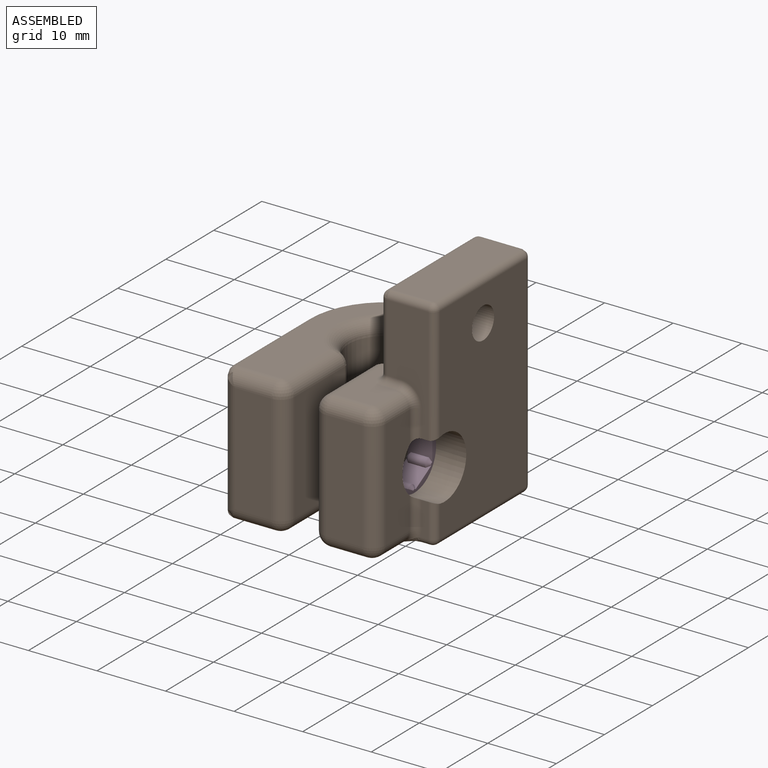
[diagram: assembled view]
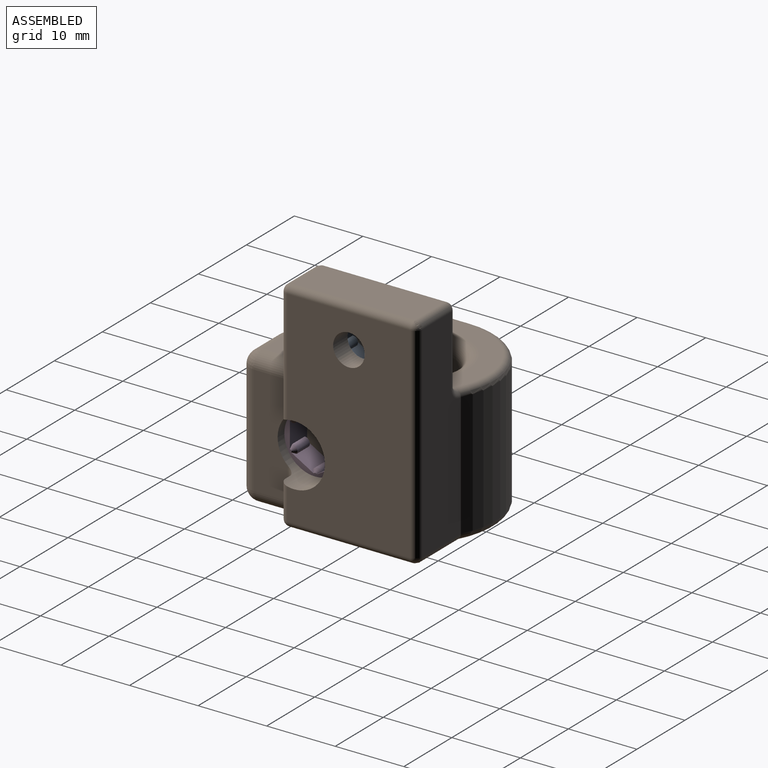
[diagram: assembled view, second angle]
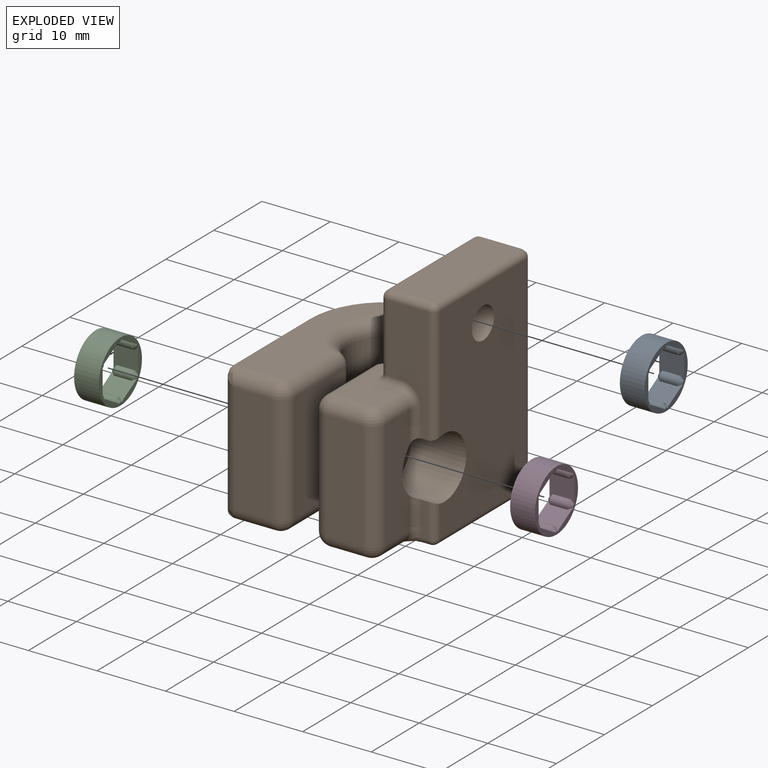
[diagram: exploded view]
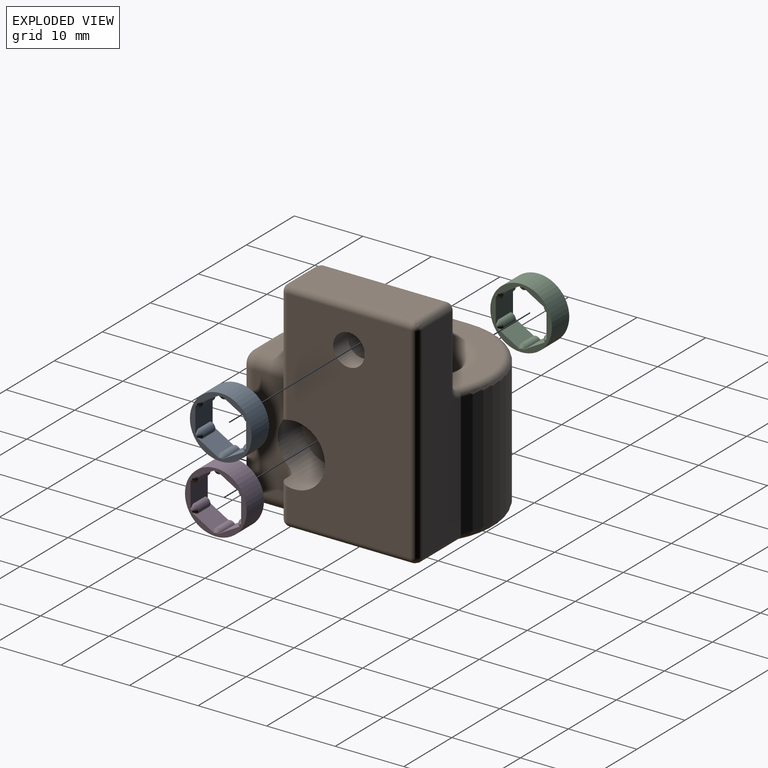
[diagram: exploded view, second angle]
ASSEMBLY  parts=4 mates=3
PART A: 27 faces, bbox 9x9x3.6 mm
  f0: plane 9x9mm, normal (0,0,1), area 16.6mm2, adj f2,f3,f4,f5,f6,f7,f8,f10
  f1: plane 9x9mm, normal (0,0,-1), area 16.6mm2, adj f2,f3,f4,f5,f6,f7,f8,f11
  f2: plane 3.77x3.6mm, normal (0,-1,0), area 10.5mm2, adj f0,f1,f9,f10,f11,f18,f19,f20
  f3: plane 3.6x3.27mm, normal (-0.87,-0.5,0), area 10.5mm2, adj f0,f1,f9,f10,f11,f15,f16,f17
  f4: plane 3.6x3.27mm, normal (-0.87,0.5,0), area 10.5mm2, adj f0,f1,f12,f13,f14,f15,f16,f17
  f5: plane 3.77x3.6mm, normal (0,1,0), area 10.5mm2, adj f0,f1,f12,f13,f14,f24,f25,f26
  f6: plane 3.6x3.27mm, normal (0.87,0.5,0), area 10.5mm2, adj f0,f1,f21,f22,f23,f24,f25,f26
  f7: cylinder r=4.5mm len=9mm, axis (0,0,-1), area 101.8mm2, adj f0,f1
  f8: plane 3.6x3.27mm, normal (0.87,-0.5,0), area 10.5mm2, adj f0,f1,f18,f19,f20,f21,f22,f23
  f9: cylinder r=0.75mm len=2.6mm, axis (0,0,-1), area 4.1mm2, adj f2,f3,f10,f11
  f10: cone r=0.25mm half-angle=45deg, axis (0,0,-1), area 0.7mm2, adj f0,f2,f3,f9
  f11: cone r=0.75mm half-angle=45deg, axis (0,0,1), area 0.7mm2, adj f1,f2,f3,f9
  f12: cylinder r=0.75mm len=2.6mm, axis (0,0,-1), area 4.1mm2, adj f4,f5,f13,f14
  f13: cone r=0.25mm half-angle=45deg, axis (0,0,-1), area 0.7mm2, adj f0,f4,f5,f12
  f14: cone r=0.75mm half-angle=45deg, axis (0,0,1), area 0.7mm2, adj f1,f4,f5,f12
  f15: cone r=0.75mm half-angle=45deg, axis (0,0,1), area 0.7mm2, adj f1,f3,f4,f17
  f16: cone r=0.25mm half-angle=45deg, axis (0,0,-1), area 0.7mm2, adj f0,f3,f4,f17
  f17: cylinder r=0.75mm len=2.6mm, axis (0,0,-1), area 4.1mm2, adj f3,f4,f15,f16
  f18: cone r=0.75mm half-angle=45deg, axis (0,0,1), area 0.7mm2, adj f1,f2,f8,f20
  f19: cone r=0.25mm half-angle=45deg, axis (0,0,-1), area 0.7mm2, adj f0,f2,f8,f20
  f20: cylinder r=0.75mm len=2.6mm, axis (0,0,-1), area 4.1mm2, adj f2,f8,f18,f19
  f21: cone r=0.75mm half-angle=45deg, axis (0,0,1), area 0.7mm2, adj f1,f6,f8,f23
  f22: cone r=0.25mm half-angle=45deg, axis (0,0,-1), area 0.7mm2, adj f0,f6,f8,f23
  f23: cylinder r=0.75mm len=2.6mm, axis (0,0,-1), area 4.1mm2, adj f6,f8,f21,f22
  f24: cone r=0.75mm half-angle=45deg, axis (0,0,1), area 0.7mm2, adj f1,f5,f6,f26
  f25: cone r=0.25mm half-angle=45deg, axis (0,0,-1), area 0.7mm2, adj f0,f5,f6,f26
  f26: cylinder r=0.75mm len=2.6mm, axis (0,0,-1), area 4.1mm2, adj f5,f6,f24,f25
PART B: 94 faces, bbox 27.6x31.3x35.1 mm
  f0: plane 10.98x5.3mm, normal (0,0,1), area 34.4mm2, adj f39,f43,f47,f49,f83,f86,f87
  f1: plane 16x5mm, normal (1,0,0), area 73mm2, adj f15,f40,f46,f49,f50,f82
  f2: cylinder r=11.3mm len=18mm, axis (0,0,-1), area 418mm2, adj f6,f21,f58,f63
  f3: cylinder r=2.3mm len=4.6mm, axis (-1,0,0), area 43.4mm2, adj f20,f23
  f4: cylinder r=2.3mm len=4.6mm, axis (1,0,0), area 62.1mm2, adj f8,f16
  f5: cylinder r=2.3mm len=4.6mm, axis (1,0,0), area 62.1mm2, adj f10,f14
  f6: plane 18x16mm, normal (-1,0,0), area 224.4mm2, adj f2,f17,f26,f54,f60
  f7: plane 16x5.3mm, normal (0,-1,0), area 84.8mm2, adj f26,f27,f28,f29
  f8: plane 16x10.46mm, normal (1,0,0), area 150.7mm2, adj f4,f28,f32,f33,f89
  f9: cylinder r=5.3mm len=16mm, axis (0,0,-1), area 448.6mm2, adj f34,f35,f37,f39,f89,f92
  f10: plane 16x10.46mm, normal (-1,0,0), area 150.7mm2, adj f5,f36,f42,f43,f92
  f11: plane 16x5.3mm, normal (0,-1,0), area 84.8mm2, adj f41,f42,f46,f47
  f12: plane 26.3x15.6mm, normal (0,0,1), area 145.2mm2, adj f29,f33,f35,f60,f63,f65,f69
  f13: plane 27.38x24.68mm, normal (0,0,-1), area 318.7mm2, adj f27,f32,f34,f36,f40,f41,f53,f54
  f14: plane 9x9mm, normal (1,0,0), area 47mm2, adj f5,f15
  f15: cylinder r=4.5mm len=9mm, axis (1,0,0), area 196.4mm2, adj f1,f14,f19,f20,f25,f50,f56,f73
  f16: plane 9x9mm, normal (-1,0,0), area 47mm2, adj f4,f17
  f17: cylinder r=4.5mm len=9mm, axis (-1,0,0), area 141.4mm2, adj f6,f16
  f18: plane 18x10.5mm, normal (-1,0,0), area 119.3mm2, adj f24,f69,f70,f74,f77,f78,f80,f83
  f19: plane 16.97x6mm, normal (0,-1,0), area 68.9mm2, adj f15,f73,f79,f82,f84,f85,f87
  f20: plane 30x18mm, normal (1,0,0), area 482.6mm2, adj f3,f15,f56,f62,f66,f72,f73
  f21: plane 30x8.04mm, normal (0,1,0), area 217.5mm2, adj f2,f61,f65,f66,f67,f70,f71
  f22: plane 18x6mm, normal (0,0,1), area 108mm2, adj f71,f72,f78,f79
  f23: plane 9x9mm, normal (-1,0,0), area 47mm2, adj f3,f24
  f24: cylinder r=4.5mm len=9mm, axis (-1,0,0), area 141.4mm2, adj f18,f23
  f25: plane 4.97x1.17mm, normal (0,-1,0), area 5mm2, adj f15,f50,f51,f55,f56
  f26: cylinder r=2mm len=18mm, axis (0,0,-1), area 53.4mm2, adj f6,f7,f52,f57
  f27: cylinder r=2mm len=6.3mm, axis (1,0,0), area 18.2mm2, adj f7,f13,f30,f52
  f28: cylinder r=2mm len=16mm, axis (0,0,-1), area 50.3mm2, adj f7,f8,f30,f31
  f29: cylinder r=2mm len=6.3mm, axis (-1,0,0), area 18.2mm2, adj f7,f12,f31,f57
  f30: sphere r=2mm, area 6.3mm2, adj f27,f28,f32
  f31: sphere r=2mm, area 6.3mm2, adj f28,f29,f33
  f32: cylinder r=2mm len=10.46mm, axis (0,1,0), area 32mm2, adj f8,f13,f30,f90
  f33: cylinder r=2mm len=10.46mm, axis (0,-1,0), area 32mm2, adj f8,f12,f31,f88
  f34: torus R=7.3mm, axis (0,0,1), area 98.5mm2, adj f9,f13,f90,f93
  f35: torus R=7.3mm, axis (0,0,1), area 68.3mm2, adj f9,f12,f37,f74,f88
  f36: cylinder r=2mm len=10.46mm, axis (0,-1,0), area 32mm2, adj f10,f13,f38,f93
  f37: bspline ~8.27x2.3mm, area 10.8mm2, adj f9,f35,f39,f77
  f38: sphere r=2mm, area 6.3mm2, adj f36,f41,f42
  f39: torus R=7.3mm, axis (0,0,1), area 8.8mm2, adj f0,f9,f37,f80,f91
  f40: cylinder r=2mm len=5mm, axis (0,1,0), area 15.7mm2, adj f1,f13,f44,f51
  f41: cylinder r=2mm len=5.3mm, axis (1,0,0), area 16.7mm2, adj f11,f13,f38,f44
  f42: cylinder r=2mm len=16mm, axis (0,0,1), area 50.3mm2, adj f10,f11,f38,f45
  f43: cylinder r=2mm len=10.46mm, axis (0,1,0), area 32mm2, adj f0,f10,f45,f91
  f44: sphere r=2mm, area 6.3mm2, adj f40,f41,f46
  f45: sphere r=2mm, area 6.3mm2, adj f42,f43,f47
  f46: cylinder r=2mm len=16mm, axis (0,0,1), area 50.3mm2, adj f1,f11,f44,f48
  f47: cylinder r=2mm len=5.3mm, axis (-1,0,0), area 16.7mm2, adj f0,f11,f45,f48
  f48: sphere r=2mm, area 6.3mm2, adj f46,f47,f49
  f49: cylinder r=2mm len=5mm, axis (0,-1,0), area 15.7mm2, adj f0,f1,f48,f85
  f50: cylinder r=1mm len=4.65mm, axis (0,0,1), area 6.8mm2, adj f1,f15,f25,f51
  f51: torus R=3mm, axis (0,1,0), area 2.7mm2, adj f25,f40,f50,f53
  f52: bspline ~2.1x2mm, area 2.2mm2, adj f26,f27,f54
  f53: bspline ~3.33x2mm, area 1.7mm2, adj f13,f51,f55
  f54: cylinder r=1mm len=16mm, axis (0,-1,0), area 25.1mm2, adj f6,f13,f52,f58
  f55: cylinder r=1mm len=1.17mm, axis (1,0,0), area 1.8mm2, adj f13,f25,f53,f59
  f56: cylinder r=1mm len=4.97mm, axis (0,0,-1), area 7.5mm2, adj f15,f20,f25,f59
  f57: bspline ~2.39x2mm, area 2.2mm2, adj f26,f29,f60
  f58: torus R=10.3mm, axis (0,0,1), area 35.5mm2, adj f2,f13,f54,f61
  f59: sphere r=1mm, area 2.1mm2, adj f55,f56,f62
  f60: cylinder r=1mm len=16mm, axis (0,1,0), area 25.1mm2, adj f6,f12,f57,f63
  f61: cylinder r=1mm len=8.29mm, axis (1,0,0), area 12.8mm2, adj f13,f21,f58,f64
  f62: cylinder r=1mm len=18mm, axis (0,1,0), area 28.3mm2, adj f13,f20,f59,f64
  f63: torus R=10.3mm, axis (0,0,1), area 35.5mm2, adj f2,f12,f60,f65
  f64: sphere r=1mm, area 1mm2, adj f61,f62,f66
  f65: cylinder r=1mm len=1mm, axis (-1,0,0), area 0.2mm2, adj f12,f21,f63,f67
  f66: cylinder r=1mm len=30mm, axis (0,0,1), area 47.1mm2, adj f20,f21,f64,f68
  f67: torus R=2mm, axis (0,-1,0), area 3.4mm2, adj f21,f65,f69,f70
  f68: sphere r=1mm, area 1mm2, adj f66,f71,f72
  f69: cylinder r=1mm len=3.98mm, axis (0,-1,0), area 6.3mm2, adj f12,f18,f67,f74
  f70: cylinder r=1mm len=10mm, axis (0,0,-1), area 15.7mm2, adj f18,f21,f67,f75
  f71: cylinder r=1mm len=6mm, axis (1,0,0), area 9.4mm2, adj f21,f22,f68,f75
  f72: cylinder r=1mm len=18mm, axis (0,-1,0), area 28.3mm2, adj f20,f22,f68,f76
  f73: cylinder r=1mm len=16.97mm, axis (0,0,-1), area 26.4mm2, adj f15,f19,f20,f76
  f74: bspline ~3.57x1.37mm, area 2.5mm2, adj f18,f35,f69,f77
  f75: sphere r=1mm, area 2.1mm2, adj f70,f71,f78
  f76: sphere r=1mm, area 1.6mm2, adj f72,f73,f79
  f77: bspline ~6.94x1.05mm, area 6.2mm2, adj f18,f37,f74,f80
  f78: cylinder r=1mm len=18mm, axis (0,1,0), area 28.3mm2, adj f18,f22,f75,f81
  f79: cylinder r=1mm len=6mm, axis (-1,0,0), area 9.4mm2, adj f19,f22,f76,f81
  f80: bspline ~4.27x1.36mm, area 2.5mm2, adj f18,f39,f77,f83
  f81: sphere r=1mm, area 1mm2, adj f78,f79,f84
  f82: cylinder r=1mm len=4.65mm, axis (0,0,-1), area 6.8mm2, adj f1,f15,f19,f85
  f83: cylinder r=1mm len=3.98mm, axis (0,-1,0), area 6.3mm2, adj f0,f18,f80,f86
  f84: cylinder r=1mm len=10mm, axis (0,0,1), area 15.7mm2, adj f18,f19,f81,f86
  f85: torus R=3mm, axis (0,-1,0), area 5.8mm2, adj f19,f49,f82,f87
  f86: torus R=2mm, axis (0,0,1), area 3.4mm2, adj f0,f83,f84,f87
  f87: cylinder r=1mm len=2mm, axis (1,0,0), area 3.1mm2, adj f0,f19,f85,f86
  f88: bspline ~2.43x2mm, area 1.4mm2, adj f33,f35,f89
  f89: cylinder r=1mm len=16mm, axis (0,0,-1), area 17.2mm2, adj f8,f9,f88,f90
  f90: bspline ~2.43x2mm, area 1.4mm2, adj f32,f34,f89
  f91: bspline ~2.43x2mm, area 1.4mm2, adj f39,f43,f92
  f92: cylinder r=1mm len=16mm, axis (0,0,-1), area 17.2mm2, adj f9,f10,f91,f93
  f93: bspline ~2.43x2mm, area 1.4mm2, adj f34,f36,f92
PART C: same geometry as A
PART D: same geometry as A
PLACE A rot(axis=(-0.71,0,0.71),180deg) t=(11.3,0,26)mm
PLACE B at identity fixed
PLACE C rot(axis=(0.71,0,-0.71),180deg) t=(-6.3,-8,10)mm
PLACE D rot(axis=(0.71,0,-0.71),180deg) t=(9.9,-8,10)mm
MATE fastened A.f7 <-> B.f3  axis (1,0,0) through (11.3,0,26)mm
MATE fastened C.f7 <-> B.f4  axis (1,0,0) through (-6.3,-8,10)mm
MATE fastened D.f7 <-> B.f4  axis (-1,0,0) through (6.3,-8,10)mm
